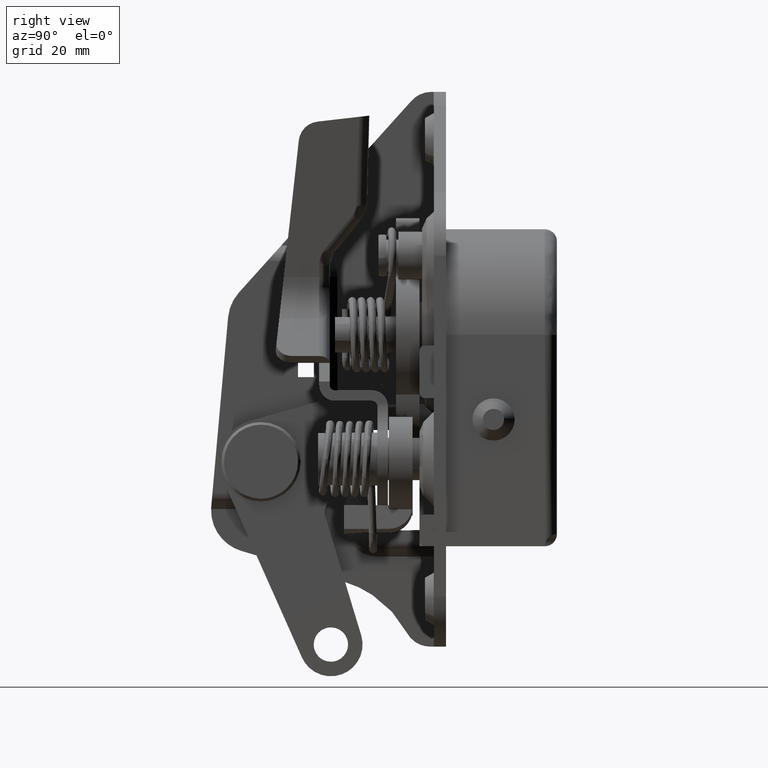
[diagram: clean part render]
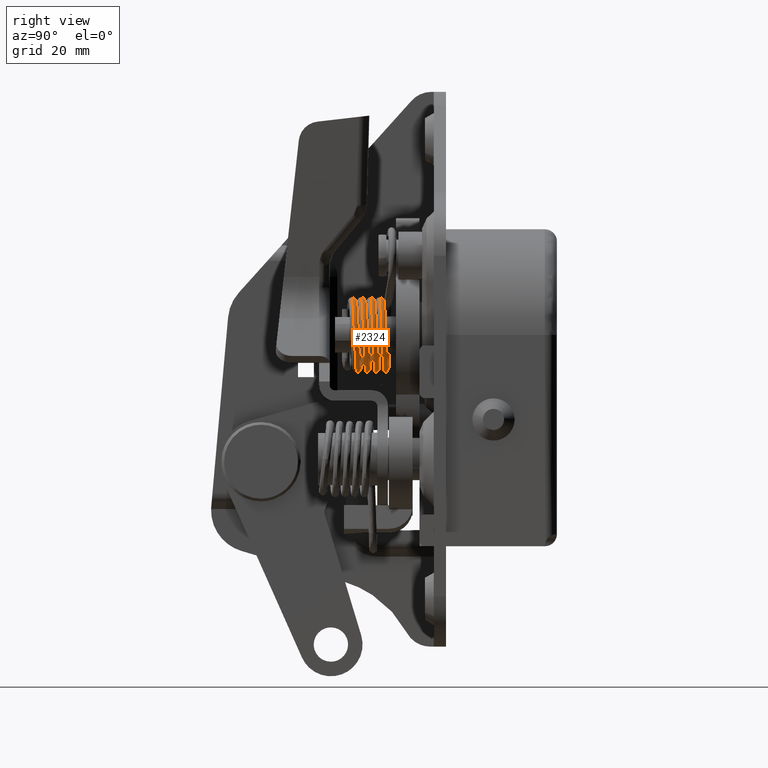
[diagram: same view with one face highlighted and labeled with its STEP entity id]
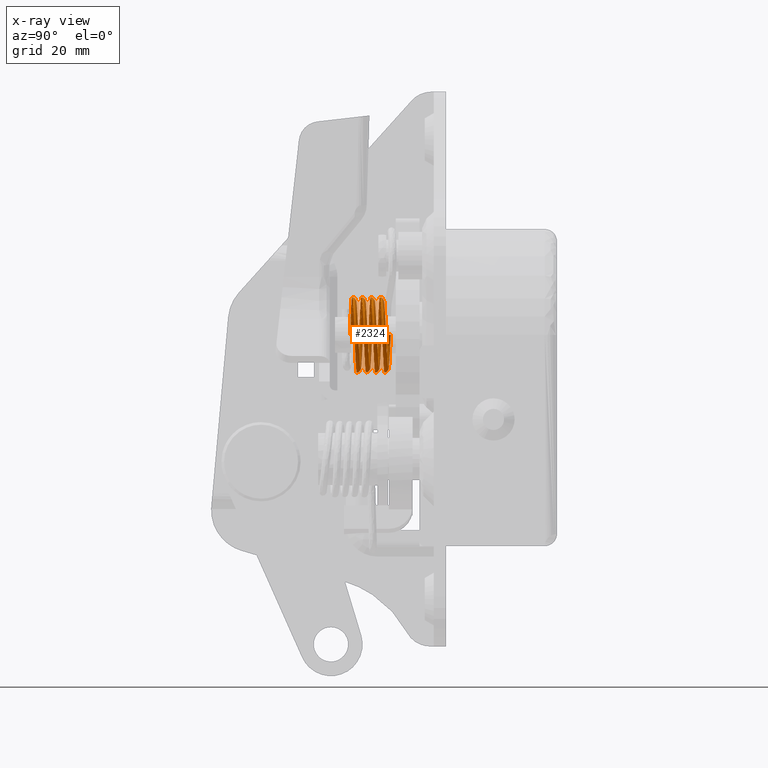
[diagram: x-ray of the same camera — body ghosted, the highlighted face saturated]
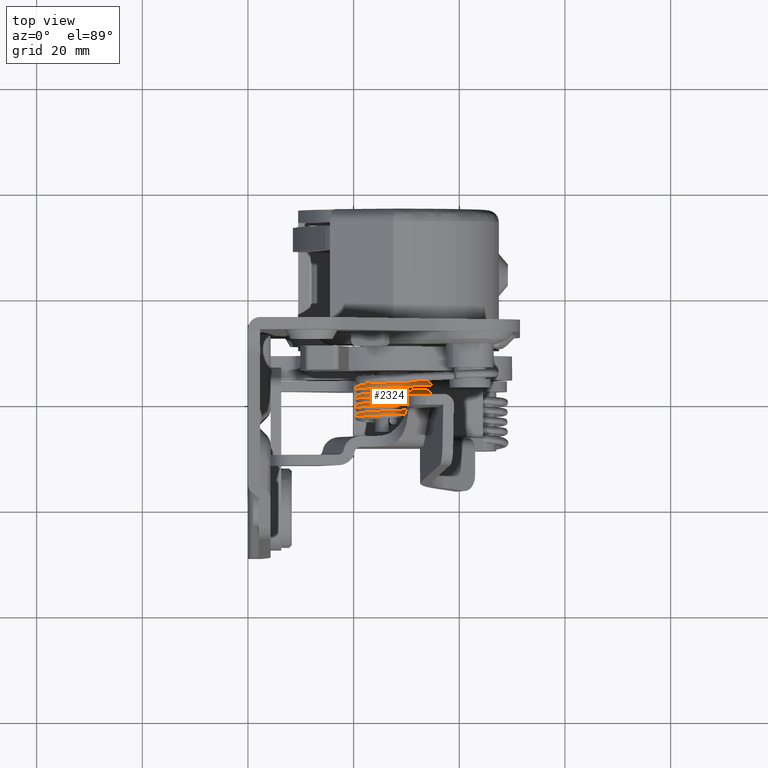
[diagram: same view with one face highlighted and labeled with its STEP entity id]
A machine part, right view. The second image highlights one B-rep face of the part: STEP entity #2324.
The next image is the same camera in x-ray: the body ghosted, the highlighted face saturated — about 0% of this face is hidden behind the body in this view.
A second angle (top view) of the same face is appended — the face is thin or edge-on in the first view.
In plain terms, the highlighted face is a freeform B-spline surface patch.
Its self-contained STEP definition (entity closure, byte-faithful):
#1089=CARTESIAN_POINT('',(20.340765150311949,16.812503550385820,24.100041675324679));
#1090=VERTEX_POINT('',#1089);
#1103=CARTESIAN_POINT('',(20.347090546051199,16.910682481819499,24.100000000000900));
#1104=VERTEX_POINT('',#1103);
#1105=CARTESIAN_POINT('',(20.347090546051199,16.910682481819499,24.100000000000900));
#1106=CARTESIAN_POINT('',(20.342838196119398,16.878148666121209,24.100043880886510));
#1107=CARTESIAN_POINT('',(20.340722957700009,16.845315873110611,24.100057816645130));
#1108=CARTESIAN_POINT('',(20.340765150311949,16.812503550385820,24.100041675324679));
#1109=B_SPLINE_CURVE_WITH_KNOTS('',3,(#1105,#1106,#1107,#1108),.UNSPECIFIED.,.F.,.U.,(4,4),(1.186188E-009,0.098457502183648),.UNSPECIFIED.);
#1110=EDGE_CURVE('',#1104,#1090,#1109,.T.);
#1112=CARTESIAN_POINT('',(20.341038092635149,16.842506223851149,24.033213713807001));
#1113=VERTEX_POINT('',#1112);
#1114=CARTESIAN_POINT('',(20.347090546051199,16.910682481819499,24.100000000000900));
#1115=CARTESIAN_POINT('',(20.343946676557469,16.887410031164269,24.078433802234890));
#1116=CARTESIAN_POINT('',(20.341926135428132,16.864649950670788,24.056137728973269));
#1117=CARTESIAN_POINT('',(20.341038092635149,16.842506223851149,24.033213713807001));
#1118=B_SPLINE_CURVE_WITH_KNOTS('',3,(#1114,#1115,#1116,#1117),.UNSPECIFIED.,.F.,.U.,(4,4),(2.536595E-010,0.095663904122388),.UNSPECIFIED.);
#1119=EDGE_CURVE('',#1104,#1113,#1118,.T.);
#1121=CARTESIAN_POINT('',(21.813089053093130,17.014604477294480,24.026384192999171));
#1122=VERTEX_POINT('',#1121);
#1123=CARTESIAN_POINT('',(20.341038092635149,16.842506223851149,24.033213713807001));
#1124=CARTESIAN_POINT('',(20.345802583286972,16.975238791239200,24.033191609145589));
#1125=CARTESIAN_POINT('',(20.418280836531238,17.204612831795298,24.032855349225301));
#1126=CARTESIAN_POINT('',(20.645814563558272,17.439890409005599,24.031799715714619));
#1127=CARTESIAN_POINT('',(20.870953715486859,17.542021151910699,24.030755191738209));
#1128=CARTESIAN_POINT('',(21.080423939309888,17.571178527326669,24.029783363119019));
#1129=CARTESIAN_POINT('',(21.280217341030529,17.550192004362760,24.028856429724140));
#1130=CARTESIAN_POINT('',(21.466423697138300,17.473072334417591,24.027992532877079));
#1131=CARTESIAN_POINT('',(21.677877630459090,17.309712222384160,24.027011500917620));
#1132=CARTESIAN_POINT('',(21.777867959926422,17.142700425344479,24.026547599834579));
#1133=CARTESIAN_POINT('',(21.813089053093130,17.014604477294480,24.026384192999171));
#1134=B_SPLINE_CURVE_WITH_KNOTS('',3,(#1123,#1124,#1125,#1126,#1127,#1128,#1129,#1130,#1131,#1132,#1133),.UNSPECIFIED.,.F.,.U.,(4,1,1,1,1,1,1,1,4),(0.000000493142820,0.398299288495498,0.697061440753659,0.962634832406464,1.128532849224858,1.327691147078739,1.560071444188675,1.726062092627393,2.124355999895241),.UNSPECIFIED.);
#1135=EDGE_CURVE('',#1113,#1122,#1134,.T.);
#1766=CARTESIAN_POINT('',(21.812250397722845,16.977222878724142,23.365481761800229));
#1767=CARTESIAN_POINT('',(21.811511675482048,16.979879755068421,23.365399350870163));
#1768=CARTESIAN_POINT('',(21.810768777913310,16.982551648329022,23.365316474145729));
#1769=CARTESIAN_POINT('',(21.466305867809737,18.221441324045518,23.326888622336480));
#1770=CARTESIAN_POINT('',(20.336626599531012,17.848943456188199,23.200863014817973));
#1771=CARTESIAN_POINT('',(20.336626599531048,16.781018987594909,23.200863014817983));
#1772=CARTESIAN_POINT('',(20.336626599531030,16.777641485968488,23.200863014817969));
#1773=CARTESIAN_POINT('',(20.336626599531055,16.774294405638894,23.200863014817983));
#1774=CARTESIAN_POINT('',(21.813759232044980,16.991673459872533,23.690699456498539));
#1775=CARTESIAN_POINT('',(21.813020705770882,16.994330336216805,23.690659284689559));
#1776=CARTESIAN_POINT('',(21.812278005276458,16.997002229477403,23.690618885825707));
#1777=CARTESIAN_POINT('',(21.467906473573453,18.235891905193906,23.671886949161557));
#1778=CARTESIAN_POINT('',(20.338526884248992,17.863394037336583,23.610454847522949));
#1779=CARTESIAN_POINT('',(20.338526884249024,16.795469568743293,23.610454847522963));
#1780=CARTESIAN_POINT('',(20.338526884249006,16.792092067116876,23.610454847522949));
#1781=CARTESIAN_POINT('',(20.338526884249013,16.788744986787272,23.610454847522956));
#1782=CARTESIAN_POINT('',(21.830543534129493,17.152422003123185,27.308427361367791));
#1783=CARTESIAN_POINT('',(21.829807187792657,17.155078879467442,27.308857058356008));
#1784=CARTESIAN_POINT('',(21.829066679556689,17.157750772728054,27.309289184032238));
#1785=CARTESIAN_POINT('',(21.485711642942995,18.396640448444582,27.509654987109524));
#1786=CARTESIAN_POINT('',(20.359665688082526,18.024142580587249,28.166762290012997));
#1787=CARTESIAN_POINT('',(20.359665688082526,16.956218111993930,28.166762290012986));
#1788=CARTESIAN_POINT('',(20.359665688082529,16.952840610367520,28.166762290012983));
#1789=CARTESIAN_POINT('',(20.359665688082522,16.949493530037923,28.166762290012986));
#1790=CARTESIAN_POINT('',(24.680498721357079,17.298255336456510,28.936267183572589));
#1791=CARTESIAN_POINT('',(24.680132525858305,17.300912212800782,28.936908303630606));
#1792=CARTESIAN_POINT('',(24.679764260587959,17.303584106061386,28.937553047359813));
#1793=CARTESIAN_POINT('',(24.509008920884948,18.542473781777897,29.236504491780185));
#1794=CARTESIAN_POINT('',(23.949010263402947,18.169975913920567,30.216927170326745));
#1795=CARTESIAN_POINT('',(23.949010263402947,17.102051445327263,30.216927170326763));
#1796=CARTESIAN_POINT('',(23.949010263402958,17.098673943700863,30.216927170326759));
#1797=CARTESIAN_POINT('',(23.949010263402936,17.095326863371241,30.216927170326741));
#1798=CARTESIAN_POINT('',(27.530453908584661,17.444088669789867,30.564107005777451));
#1799=CARTESIAN_POINT('',(27.530457863923967,17.446745546134139,30.564959548905247));
#1800=CARTESIAN_POINT('',(27.530461841619225,17.449417439394736,30.565816910687438));
#1801=CARTESIAN_POINT('',(27.532306198826962,18.688307115111250,30.963353996450856));
#1802=CARTESIAN_POINT('',(27.538354838723414,18.315809247253924,32.267092050640457));
#1803=CARTESIAN_POINT('',(27.538354838723414,17.247884778660620,32.267092050640443));
#1804=CARTESIAN_POINT('',(27.538354838723407,17.244507277034209,32.267092050640443));
#1805=CARTESIAN_POINT('',(27.538354838723411,17.241160196704612,32.267092050640443));
#1806=CARTESIAN_POINT('',(30.365182141519753,17.589922003123206,28.909893325093527));
#1807=CARTESIAN_POINT('',(30.365554270027484,17.592578879467482,28.910531019727216));
#1808=CARTESIAN_POINT('',(30.365928501840735,17.595250772728079,28.911172318671277));
#1809=CARTESIAN_POINT('',(30.539450377355312,18.834140448444558,29.208526502896081));
#1810=CARTESIAN_POINT('',(31.108521994681961,18.461642580587242,30.183710905633987));
#1811=CARTESIAN_POINT('',(31.108521994682004,17.393718111993969,30.183710905634005));
#1812=CARTESIAN_POINT('',(31.108521994682018,17.390340610367563,30.183710905634012));
#1813=CARTESIAN_POINT('',(31.108521994681986,17.386993530037941,30.183710905633983));
#1814=CARTESIAN_POINT('',(33.199910374454845,17.735755336456549,27.255679644409621));
#1815=CARTESIAN_POINT('',(33.200650676130991,17.738412212800821,27.256102490549193));
#1816=CARTESIAN_POINT('',(33.201395162062219,17.741084106061418,27.256527726655136));
#1817=CARTESIAN_POINT('',(33.546594555883672,18.979973781777911,27.453699009341324));
#1818=CARTESIAN_POINT('',(34.678689150640565,18.607475913920595,28.100329760627474));
#1819=CARTESIAN_POINT('',(34.678689150640579,17.539551445327298,28.100329760627481));
#1820=CARTESIAN_POINT('',(34.678689150640579,17.536173943700899,28.100329760627485));
#1821=CARTESIAN_POINT('',(34.678689150640579,17.532826863371291,28.100329760627485));
#1822=CARTESIAN_POINT('',(33.184683420162372,17.881588669789853,23.973626141520931));
#1823=CARTESIAN_POINT('',(33.185421744168856,17.884245546134132,23.973622716096603));
#1824=CARTESIAN_POINT('',(33.186164241252449,17.886917439394733,23.973619271311460));
#1825=CARTESIAN_POINT('',(33.530441456470051,19.125807115111215,23.972022011115893));
#1826=CARTESIAN_POINT('',(34.659511731278734,18.753309247253899,23.966783735307231));
#1827=CARTESIAN_POINT('',(34.659511731278755,17.685384778660620,23.966783735307260));
#1828=CARTESIAN_POINT('',(34.659511731278769,17.682007277034216,23.966783735307260));
#1829=CARTESIAN_POINT('',(34.659511731278734,17.678660196704595,23.966783735307246));
#1830=CARTESIAN_POINT('',(33.169456465869935,18.027422003123206,20.691572638632195));
#1831=CARTESIAN_POINT('',(33.170192812206771,18.030078879467474,20.691142941643971));
#1832=CARTESIAN_POINT('',(33.170933320442735,18.032750772728072,20.690710815967734));
#1833=CARTESIAN_POINT('',(33.514288357056429,19.271640448444579,20.490345012890469));
#1834=CARTESIAN_POINT('',(34.640334311916888,18.899142580587256,19.833237709987007));
#1835=CARTESIAN_POINT('',(34.640334311916909,17.831218111993952,19.833237709986992));
#1836=CARTESIAN_POINT('',(34.640334311916909,17.827840610367556,19.833237709987003));
#1837=CARTESIAN_POINT('',(34.640334311916909,17.824493530037948,19.833237709986999));
#1838=CARTESIAN_POINT('',(30.319501278642356,18.173255336456503,19.063732816427397));
#1839=CARTESIAN_POINT('',(30.319867474141130,18.175912212800785,19.063091696369387));
#1840=CARTESIAN_POINT('',(30.320235739411476,18.178584106061390,19.062446952640187));
#1841=CARTESIAN_POINT('',(30.490991079114401,19.417473781777879,18.763495508219780));
#1842=CARTESIAN_POINT('',(31.050989736596446,19.044975913920556,17.783072829673245));
#1843=CARTESIAN_POINT('',(31.050989736596510,17.977051445327266,17.783072829673252));
#1844=CARTESIAN_POINT('',(31.050989736596510,17.973673943700859,17.783072829673255));
#1845=CARTESIAN_POINT('',(31.050989736596485,17.970326863371245,17.783072829673234));
#1846=CARTESIAN_POINT('',(27.469546091414777,18.319088669789860,17.435892994222577));
#1847=CARTESIAN_POINT('',(27.469542136075461,18.321745546134132,17.435040451094778));
#1848=CARTESIAN_POINT('',(27.469538158380193,18.324417439394740,17.434183089312608));
#1849=CARTESIAN_POINT('',(27.467693801172476,19.563307115111240,17.036646003549137));
#1850=CARTESIAN_POINT('',(27.461645161276024,19.190809247253917,15.732907949359543));
#1851=CARTESIAN_POINT('',(27.461645161276017,18.122884778660616,15.732907949359536));
#1852=CARTESIAN_POINT('',(27.461645161276028,18.119507277034209,15.732907949359539));
#1853=CARTESIAN_POINT('',(27.461645161276021,18.116160196704602,15.732907949359529));
#1854=CARTESIAN_POINT('',(24.634817858479686,18.464922003123203,19.090106674906473));
#1855=CARTESIAN_POINT('',(24.634445729971965,18.467578879467474,19.089468980272787));
#1856=CARTESIAN_POINT('',(24.634071498158711,18.470250772728082,19.088827681328720));
#1857=CARTESIAN_POINT('',(24.460549622644095,19.709140448444568,18.791473497103901));
#1858=CARTESIAN_POINT('',(23.891478005317431,19.336642580587252,17.816289094366020));
#1859=CARTESIAN_POINT('',(23.891478005317452,18.268718111993962,17.816289094366049));
#1860=CARTESIAN_POINT('',(23.891478005317467,18.265340610367556,17.816289094366059));
#1861=CARTESIAN_POINT('',(23.891478005317445,18.261993530037941,17.816289094366041));
#1862=CARTESIAN_POINT('',(21.800089625544580,18.610755336456513,20.744320355590347));
#1863=CARTESIAN_POINT('',(21.799349323868434,18.613412212800785,20.743897509450772));
#1864=CARTESIAN_POINT('',(21.798604837937201,18.616084106061376,20.743472273344835));
#1865=CARTESIAN_POINT('',(21.453405444115766,19.854973781777915,20.546300990658668));
#1866=CARTESIAN_POINT('',(20.321310849358852,19.482475913920585,19.899670239372522));
#1867=CARTESIAN_POINT('',(20.321310849358852,18.414551445327263,19.899670239372497));
#1868=CARTESIAN_POINT('',(20.321310849358852,18.411173943700863,19.899670239372497));
#1869=CARTESIAN_POINT('',(20.321310849358849,18.407826863371259,19.899670239372501));
#1870=CARTESIAN_POINT('',(21.815316579837031,18.756588669789849,24.026373858479054));
#1871=CARTESIAN_POINT('',(21.814578255830529,18.759245546134128,24.026377283903390));
#1872=CARTESIAN_POINT('',(21.813835758746933,18.761917439394725,24.026380728688526));
#1873=CARTESIAN_POINT('',(21.469558543529359,20.000807115111222,24.027977988884093));
#1874=CARTESIAN_POINT('',(20.340488268720680,19.628309247253902,24.033216264692747));
#1875=CARTESIAN_POINT('',(20.340488268720705,18.560384778660620,24.033216264692758));
#1876=CARTESIAN_POINT('',(20.340488268720705,18.557007277034209,24.033216264692761));
#1877=CARTESIAN_POINT('',(20.340488268720691,18.553660196704595,24.033216264692744));
#1878=CARTESIAN_POINT('',(21.830543534129493,18.902422003123167,27.308427361367791));
#1879=CARTESIAN_POINT('',(21.829807187792657,18.905078879467453,27.308857058356008));
#1880=CARTESIAN_POINT('',(21.829066679556689,18.907750772728047,27.309289184032238));
#1881=CARTESIAN_POINT('',(21.485711642942995,20.146640448444572,27.509654987109524));
#1882=CARTESIAN_POINT('',(20.359665688082526,19.774142580587242,28.166762290012997));
#1883=CARTESIAN_POINT('',(20.359665688082526,18.706218111993916,28.166762290012986));
#1884=CARTESIAN_POINT('',(20.359665688082529,18.702840610367510,28.166762290012983));
#1885=CARTESIAN_POINT('',(20.359665688082522,18.699493530037905,28.166762290012986));
#1886=CARTESIAN_POINT('',(24.680498721357079,19.048255336456510,28.936267183572589));
#1887=CARTESIAN_POINT('',(24.680132525858305,19.050912212800789,28.936908303630606));
#1888=CARTESIAN_POINT('',(24.679764260587959,19.053584106061390,28.937553047359813));
#1889=CARTESIAN_POINT('',(24.509008920884948,20.292473781777886,29.236504491780185));
#1890=CARTESIAN_POINT('',(23.949010263402947,19.919975913920567,30.216927170326745));
#1891=CARTESIAN_POINT('',(23.949010263402947,18.852051445327266,30.216927170326763));
#1892=CARTESIAN_POINT('',(23.949010263402958,18.848673943700863,30.216927170326759));
#1893=CARTESIAN_POINT('',(23.949010263402936,18.845326863371245,30.216927170326741));
#1894=CARTESIAN_POINT('',(27.530453908584661,19.194088669789867,30.564107005777451));
#1895=CARTESIAN_POINT('',(27.530457863923967,19.196745546134149,30.564959548905247));
#1896=CARTESIAN_POINT('',(27.530461841619225,19.199417439394743,30.565816910687438));
#1897=CARTESIAN_POINT('',(27.532306198826962,20.438307115111236,30.963353996450856));
#1898=CARTESIAN_POINT('',(27.538354838723414,20.065809247253917,32.267092050640457));
#1899=CARTESIAN_POINT('',(27.538354838723414,18.997884778660627,32.267092050640443));
#1900=CARTESIAN_POINT('',(27.538354838723407,18.994507277034220,32.267092050640443));
#1901=CARTESIAN_POINT('',(27.538354838723411,18.991160196704616,32.267092050640443));
#1902=CARTESIAN_POINT('',(30.365182141519753,19.339922003123210,28.909893325093527));
#1903=CARTESIAN_POINT('',(30.365554270027484,19.342578879467478,28.910531019727216));
#1904=CARTESIAN_POINT('',(30.365928501840735,19.345250772728072,28.911172318671277));
#1905=CARTESIAN_POINT('',(30.539450377355312,20.584140448444547,29.208526502896081));
#1906=CARTESIAN_POINT('',(31.108521994681961,20.211642580587231,30.183710905633987));
#1907=CARTESIAN_POINT('',(31.108521994682004,19.143718111993962,30.183710905634005));
#1908=CARTESIAN_POINT('',(31.108521994682018,19.140340610367566,30.183710905634012));
#1909=CARTESIAN_POINT('',(31.108521994681986,19.136993530037948,30.183710905633983));
#1910=CARTESIAN_POINT('',(33.199910374454845,19.485755336456521,27.255679644409621));
#1911=CARTESIAN_POINT('',(33.200650676130991,19.488412212800803,27.256102490549193));
#1912=CARTESIAN_POINT('',(33.201395162062219,19.491084106061393,27.256527726655136));
#1913=CARTESIAN_POINT('',(33.546594555883672,20.729973781777900,27.453699009341324));
#1914=CARTESIAN_POINT('',(34.678689150640565,20.357475913920581,28.100329760627474));
#1915=CARTESIAN_POINT('',(34.678689150640579,19.289551445327280,28.100329760627481));
#1916=CARTESIAN_POINT('',(34.678689150640579,19.286173943700877,28.100329760627485));
#1917=CARTESIAN_POINT('',(34.678689150640579,19.282826863371273,28.100329760627485));
#1918=CARTESIAN_POINT('',(33.184683420162372,19.631588669789856,23.973626141520931));
#1919=CARTESIAN_POINT('',(33.185421744168856,19.634245546134132,23.973622716096603));
#1920=CARTESIAN_POINT('',(33.186164241252449,19.636917439394740,23.973619271311460));
#1921=CARTESIAN_POINT('',(33.530441456470051,20.875807115111240,23.972022011115893));
#1922=CARTESIAN_POINT('',(34.659511731278734,20.503309247253913,23.966783735307231));
#1923=CARTESIAN_POINT('',(34.659511731278755,19.435384778660620,23.966783735307260));
#1924=CARTESIAN_POINT('',(34.659511731278769,19.432007277034213,23.966783735307260));
#1925=CARTESIAN_POINT('',(34.659511731278734,19.428660196704598,23.966783735307246));
#1926=CARTESIAN_POINT('',(33.169456465869935,19.777422003123192,20.691572638632195));
#1927=CARTESIAN_POINT('',(33.170192812206771,19.780078879467457,20.691142941643971));
#1928=CARTESIAN_POINT('',(33.170933320442735,19.782750772728047,20.690710815967734));
#1929=CARTESIAN_POINT('',(33.514288357056429,21.021640448444572,20.490345012890469));
#1930=CARTESIAN_POINT('',(34.640334311916888,20.649142580587245,19.833237709987007));
#1931=CARTESIAN_POINT('',(34.640334311916909,19.581218111993934,19.833237709986992));
#1932=CARTESIAN_POINT('',(34.640334311916909,19.577840610367531,19.833237709987003));
#1933=CARTESIAN_POINT('',(34.640334311916909,19.574493530037927,19.833237709986999));
#1934=CARTESIAN_POINT('',(30.319501278642356,19.923255336456517,19.063732816427397));
#1935=CARTESIAN_POINT('',(30.319867474141130,19.925912212800792,19.063091696369387));
#1936=CARTESIAN_POINT('',(30.320235739411476,19.928584106061393,19.062446952640187));
#1937=CARTESIAN_POINT('',(30.490991079114401,21.167473781777893,18.763495508219780));
#1938=CARTESIAN_POINT('',(31.050989736596446,20.794975913920567,17.783072829673245));
#1939=CARTESIAN_POINT('',(31.050989736596510,19.727051445327270,17.783072829673252));
#1940=CARTESIAN_POINT('',(31.050989736596510,19.723673943700867,17.783072829673255));
#1941=CARTESIAN_POINT('',(31.050989736596485,19.720326863371248,17.783072829673234));
#1942=CARTESIAN_POINT('',(27.469546091414777,20.069088669789831,17.435892994222577));
#1943=CARTESIAN_POINT('',(27.469542136075461,20.071745546134110,17.435040451094778));
#1944=CARTESIAN_POINT('',(27.469538158380193,20.074417439394701,17.434183089312608));
#1945=CARTESIAN_POINT('',(27.467693801172476,21.313307115111236,17.036646003549137));
#1946=CARTESIAN_POINT('',(27.461645161276024,20.940809247253910,15.732907949359543));
#1947=CARTESIAN_POINT('',(27.461645161276017,19.872884778660588,15.732907949359536));
#1948=CARTESIAN_POINT('',(27.461645161276028,19.869507277034188,15.732907949359539));
#1949=CARTESIAN_POINT('',(27.461645161276021,19.866160196704584,15.732907949359529));
#1950=CARTESIAN_POINT('',(24.634817858479686,20.214922003123203,19.090106674906473));
#1951=CARTESIAN_POINT('',(24.634445729971965,20.217578879467485,19.089468980272787));
#1952=CARTESIAN_POINT('',(24.634071498158711,20.220250772728086,19.088827681328720));
#1953=CARTESIAN_POINT('',(24.460549622644095,21.459140448444554,18.791473497103901));
#1954=CARTESIAN_POINT('',(23.891478005317431,21.086642580587242,17.816289094366020));
#1955=CARTESIAN_POINT('',(23.891478005317452,20.018718111993966,17.816289094366049));
#1956=CARTESIAN_POINT('',(23.891478005317467,20.015340610367559,17.816289094366059));
#1957=CARTESIAN_POINT('',(23.891478005317445,20.011993530037948,17.816289094366041));
#1958=CARTESIAN_POINT('',(21.800089625544580,20.360755336456545,20.744320355590347));
#1959=CARTESIAN_POINT('',(21.799349323868434,20.363412212800824,20.743897509450772));
#1960=CARTESIAN_POINT('',(21.798604837937201,20.366084106061429,20.743472273344835));
#1961=CARTESIAN_POINT('',(21.453405444115766,21.604973781777900,20.546300990658668));
#1962=CARTESIAN_POINT('',(20.321310849358852,21.232475913920585,19.899670239372522));
#1963=CARTESIAN_POINT('',(20.321310849358852,20.164551445327305,19.899670239372497));
#1964=CARTESIAN_POINT('',(20.321310849358852,20.161173943700899,19.899670239372497));
#1965=CARTESIAN_POINT('',(20.321310849358849,20.157826863371298,19.899670239372501));
#1966=CARTESIAN_POINT('',(21.815316579837031,20.506588669789863,24.026373858479054));
#1967=CARTESIAN_POINT('',(21.814578255830529,20.509245546134135,24.026377283903390));
#1968=CARTESIAN_POINT('',(21.813835758746933,20.511917439394729,24.026380728688526));
#1969=CARTESIAN_POINT('',(21.469558543529359,21.750807115111215,24.027977988884093));
#1970=CARTESIAN_POINT('',(20.340488268720680,21.378309247253899,24.033216264692747));
#1971=CARTESIAN_POINT('',(20.340488268720705,20.310384778660612,24.033216264692758));
#1972=CARTESIAN_POINT('',(20.340488268720705,20.307007277034216,24.033216264692761));
#1973=CARTESIAN_POINT('',(20.340488268720691,20.303660196704591,24.033216264692744));
#1974=CARTESIAN_POINT('',(21.830543534129493,20.652422003123199,27.308427361367791));
#1975=CARTESIAN_POINT('',(21.829807187792657,20.655078879467478,27.308857058356008));
#1976=CARTESIAN_POINT('',(21.829066679556689,20.657750772728065,27.309289184032238));
#1977=CARTESIAN_POINT('',(21.485711642942995,21.896640448444565,27.509654987109524));
#1978=CARTESIAN_POINT('',(20.359665688082526,21.524142580587245,28.166762290012997));
#1979=CARTESIAN_POINT('',(20.359665688082526,20.456218111993959,28.166762290012986));
#1980=CARTESIAN_POINT('',(20.359665688082529,20.452840610367542,28.166762290012983));
#1981=CARTESIAN_POINT('',(20.359665688082522,20.449493530037941,28.166762290012986));
#1982=CARTESIAN_POINT('',(24.680498721357079,20.798255336456510,28.936267183572589));
#1983=CARTESIAN_POINT('',(24.680132525858305,20.800912212800789,28.936908303630606));
#1984=CARTESIAN_POINT('',(24.679764260587959,20.803584106061383,28.937553047359813));
#1985=CARTESIAN_POINT('',(24.509008920884948,22.042473781777900,29.236504491780185));
#1986=CARTESIAN_POINT('',(23.949010263402947,21.669975913920577,30.216927170326745));
#1987=CARTESIAN_POINT('',(23.949010263402947,20.602051445327270,30.216927170326763));
#1988=CARTESIAN_POINT('',(23.949010263402958,20.598673943700870,30.216927170326759));
#1989=CARTESIAN_POINT('',(23.949010263402936,20.595326863371252,30.216927170326741));
#1990=CARTESIAN_POINT('',(27.530453908584661,20.944088669789853,30.564107005777451));
#1991=CARTESIAN_POINT('',(27.530457863923967,20.946745546134132,30.564959548905247));
#1992=CARTESIAN_POINT('',(27.530461841619225,20.949417439394718,30.565816910687438));
#1993=CARTESIAN_POINT('',(27.532306198826962,22.188307115111233,30.963353996450856));
#1994=CARTESIAN_POINT('',(27.538354838723414,21.815809247253906,32.267092050640457));
#1995=CARTESIAN_POINT('',(27.538354838723414,20.747884778660612,32.267092050640443));
#1996=CARTESIAN_POINT('',(27.538354838723407,20.744507277034209,32.267092050640443));
#1997=CARTESIAN_POINT('',(27.538354838723411,20.741160196704598,32.267092050640443));
#1998=CARTESIAN_POINT('',(30.365182141519753,21.089922003123210,28.909893325093527));
#1999=CARTESIAN_POINT('',(30.365554270027484,21.092578879467489,28.910531019727216));
#2000=CARTESIAN_POINT('',(30.365928501840735,21.095250772728075,28.911172318671277));
#2001=CARTESIAN_POINT('',(30.539450377355312,22.334140448444568,29.208526502896081));
#2002=CARTESIAN_POINT('',(31.108521994681961,21.961642580587249,30.183710905633987));
#2003=CARTESIAN_POINT('',(31.108521994682004,20.893718111993966,30.183710905634005));
#2004=CARTESIAN_POINT('',(31.108521994682018,20.890340610367563,30.183710905634012));
#2005=CARTESIAN_POINT('',(31.108521994681986,20.886993530037941,30.183710905633983));
#2006=CARTESIAN_POINT('',(33.199910374454845,21.235755336456510,27.255679644409621));
#2007=CARTESIAN_POINT('',(33.200650676130991,21.238412212800785,27.256102490549193));
#2008=CARTESIAN_POINT('',(33.201395162062219,21.241084106061390,27.256527726655136));
#2009=CARTESIAN_POINT('',(33.546594555883672,22.479973781777893,27.453699009341324));
#2010=CARTESIAN_POINT('',(34.678689150640565,22.107475913920570,28.100329760627474));
#2011=CARTESIAN_POINT('',(34.678689150640579,21.039551445327266,28.100329760627481));
#2012=CARTESIAN_POINT('',(34.678689150640579,21.036173943700852,28.100329760627485));
#2013=CARTESIAN_POINT('',(34.678689150640579,21.032826863371255,28.100329760627485));
#2014=CARTESIAN_POINT('',(33.184683420162372,21.381588669789856,23.973626141520931));
#2015=CARTESIAN_POINT('',(33.185421744168856,21.384245546134139,23.973622716096603));
#2016=CARTESIAN_POINT('',(33.186164241252449,21.386917439394729,23.973619271311460));
#2017=CARTESIAN_POINT('',(33.530441456470051,22.625807115111229,23.972022011115893));
#2018=CARTESIAN_POINT('',(34.659511731278734,22.253309247253906,23.966783735307231));
#2019=CARTESIAN_POINT('',(34.659511731278755,21.185384778660612,23.966783735307260));
#2020=CARTESIAN_POINT('',(34.659511731278769,21.182007277034220,23.966783735307260));
#2021=CARTESIAN_POINT('',(34.659511731278734,21.178660196704591,23.966783735307246));
#2022=CARTESIAN_POINT('',(33.169456465869935,21.527422003123164,20.691572638632195));
#2023=CARTESIAN_POINT('',(33.170192812206771,21.530078879467439,20.691142941643971));
#2024=CARTESIAN_POINT('',(33.170933320442735,21.532750772728040,20.690710815967734));
#2025=CARTESIAN_POINT('',(33.514288357056429,22.771640448444565,20.490345012890469));
#2026=CARTESIAN_POINT('',(34.640334311916888,22.399142580587235,19.833237709987007));
#2027=CARTESIAN_POINT('',(34.640334311916909,21.331218111993920,19.833237709986992));
#2028=CARTESIAN_POINT('',(34.640334311916909,21.327840610367506,19.833237709987003));
#2029=CARTESIAN_POINT('',(34.640334311916909,21.324493530037913,19.833237709986999));
#2030=CARTESIAN_POINT('',(30.319501278642356,21.673255336456503,19.063732816427397));
#2031=CARTESIAN_POINT('',(30.319867474141130,21.675912212800778,19.063091696369387));
#2032=CARTESIAN_POINT('',(30.320235739411476,21.678584106061372,19.062446952640187));
#2033=CARTESIAN_POINT('',(30.490991079114401,22.917473781777883,18.763495508219780));
#2034=CARTESIAN_POINT('',(31.050989736596446,22.544975913920563,17.783072829673245));
#2035=CARTESIAN_POINT('',(31.050989736596510,21.477051445327270,17.783072829673252));
#2036=CARTESIAN_POINT('',(31.050989736596510,21.473673943700863,17.783072829673255));
#2037=CARTESIAN_POINT('',(31.050989736596485,21.470326863371241,17.783072829673234));
#2038=CARTESIAN_POINT('',(27.469546091414777,21.819088669789863,17.435892994222577));
#2039=CARTESIAN_POINT('',(27.469542136075461,21.821745546134135,17.435040451094778));
#2040=CARTESIAN_POINT('',(27.469538158380193,21.824417439394736,17.434183089312608));
#2041=CARTESIAN_POINT('',(27.467693801172476,23.063307115111225,17.036646003549137));
#2042=CARTESIAN_POINT('',(27.461645161276024,22.690809247253906,15.732907949359543));
#2043=CARTESIAN_POINT('',(27.461645161276017,21.622884778660620,15.732907949359536));
#2044=CARTESIAN_POINT('',(27.461645161276028,21.619507277034220,15.732907949359539));
#2045=CARTESIAN_POINT('',(27.461645161276021,21.616160196704623,15.732907949359529));
#2046=CARTESIAN_POINT('',(24.634817858479686,21.964922003123192,19.090106674906473));
#2047=CARTESIAN_POINT('',(24.634445729971965,21.967578879467482,19.089468980272787));
#2048=CARTESIAN_POINT('',(24.634071498158711,21.970250772728065,19.088827681328720));
#2049=CARTESIAN_POINT('',(24.460549622644095,23.209140448444543,18.791473497103901));
#2050=CARTESIAN_POINT('',(23.891478005317431,22.836642580587231,17.816289094366020));
#2051=CARTESIAN_POINT('',(23.891478005317452,21.768718111993969,17.816289094366049));
#2052=CARTESIAN_POINT('',(23.891478005317467,21.765340610367563,17.816289094366059));
#2053=CARTESIAN_POINT('',(23.891478005317445,21.761993530037945,17.816289094366041));
#2054=CARTESIAN_POINT('',(21.800089625544580,22.110755336456517,20.744320355590347));
#2055=CARTESIAN_POINT('',(21.799349323868434,22.113412212800792,20.743897509450772));
#2056=CARTESIAN_POINT('',(21.798604837937201,22.116084106061390,20.743472273344835));
#2057=CARTESIAN_POINT('',(21.453405444115766,23.354973781777893,20.546300990658668));
#2058=CARTESIAN_POINT('',(20.321310849358852,22.982475913920567,19.899670239372522));
#2059=CARTESIAN_POINT('',(20.321310849358852,21.914551445327284,19.899670239372497));
#2060=CARTESIAN_POINT('',(20.321310849358852,21.911173943700874,19.899670239372497));
#2061=CARTESIAN_POINT('',(20.321310849358849,21.907826863371277,19.899670239372501));
#2062=CARTESIAN_POINT('',(21.815316579837031,22.256588669789853,24.026373858479054));
#2063=CARTESIAN_POINT('',(21.814578255830529,22.259245546134132,24.026377283903390));
#2064=CARTESIAN_POINT('',(21.813835758746933,22.261917439394729,24.026380728688526));
#2065=CARTESIAN_POINT('',(21.469558543529359,23.500807115111229,24.027977988884093));
#2066=CARTESIAN_POINT('',(20.340488268720680,23.128309247253910,24.033216264692747));
#2067=CARTESIAN_POINT('',(20.340488268720705,22.060384778660616,24.033216264692758));
#2068=CARTESIAN_POINT('',(20.340488268720705,22.057007277034216,24.033216264692761));
#2069=CARTESIAN_POINT('',(20.340488268720691,22.053660196704595,24.033216264692744));
#2070=CARTESIAN_POINT('',(21.830543534129493,22.402422003123174,27.308427361367791));
#2071=CARTESIAN_POINT('',(21.829807187792657,22.405078879467446,27.308857058356008));
#2072=CARTESIAN_POINT('',(21.829066679556689,22.407750772728058,27.309289184032238));
#2073=CARTESIAN_POINT('',(21.485711642942995,23.646640448444554,27.509654987109524));
#2074=CARTESIAN_POINT('',(20.359665688082526,23.274142580587235,28.166762290012997));
#2075=CARTESIAN_POINT('',(20.359665688082526,22.206218111993937,28.166762290012986));
#2076=CARTESIAN_POINT('',(20.359665688082529,22.202840610367531,28.166762290012983));
#2077=CARTESIAN_POINT('',(20.359665688082522,22.199493530037934,28.166762290012986));
#2078=CARTESIAN_POINT('',(24.680498721357079,22.548255336456513,28.936267183572589));
#2079=CARTESIAN_POINT('',(24.680132525858305,22.550912212800782,28.936908303630606));
#2080=CARTESIAN_POINT('',(24.679764260587959,22.553584106061386,28.937553047359813));
#2081=CARTESIAN_POINT('',(24.509008920884948,23.792473781777897,29.236504491780185));
#2082=CARTESIAN_POINT('',(23.949010263402947,23.419975913920570,30.216927170326745));
#2083=CARTESIAN_POINT('',(23.949010263402947,22.352051445327273,30.216927170326763));
#2084=CARTESIAN_POINT('',(23.949010263402958,22.348673943700863,30.216927170326759));
#2085=CARTESIAN_POINT('',(23.949010263402936,22.345326863371245,30.216927170326741));
#2086=CARTESIAN_POINT('',(27.530453908584661,22.694088669789828,30.564107005777451));
#2087=CARTESIAN_POINT('',(27.530457863923967,22.696745546134100,30.564959548905247));
#2088=CARTESIAN_POINT('',(27.530461841619225,22.699417439394711,30.565816910687438));
#2089=CARTESIAN_POINT('',(27.532306198826962,23.938307115111222,30.963353996450856));
#2090=CARTESIAN_POINT('',(27.538354838723414,23.565809247253895,32.267092050640457));
#2091=CARTESIAN_POINT('',(27.538354838723414,22.497884778660580,32.267092050640443));
#2092=CARTESIAN_POINT('',(27.538354838723407,22.494507277034185,32.267092050640443));
#2093=CARTESIAN_POINT('',(27.538354838723411,22.491160196704577,32.267092050640443));
#2094=CARTESIAN_POINT('',(30.365182141519753,22.839922003123210,28.909893325093527));
#2095=CARTESIAN_POINT('',(30.365554270027484,22.842578879467485,28.910531019727216));
#2096=CARTESIAN_POINT('',(30.365928501840735,22.845250772728079,28.911172318671277));
#2097=CARTESIAN_POINT('',(30.539450377355312,24.084140448444550,29.208526502896081));
#2098=CARTESIAN_POINT('',(31.108521994681961,23.711642580587238,30.183710905633987));
#2099=CARTESIAN_POINT('',(31.108521994682004,22.643718111993966,30.183710905634005));
#2100=CARTESIAN_POINT('',(31.108521994682018,22.640340610367566,30.183710905634012));
#2101=CARTESIAN_POINT('',(31.108521994681986,22.636993530037945,30.183710905633983));
#2102=CARTESIAN_POINT('',(33.199910374454845,22.985755336456538,27.255679644409621));
#2103=CARTESIAN_POINT('',(33.200650676130991,22.988412212800810,27.256102490549193));
#2104=CARTESIAN_POINT('',(33.201395162062219,22.991084106061408,27.256527726655136));
#2105=CARTESIAN_POINT('',(33.546594555883672,24.229973781777886,27.453699009341324));
#2106=CARTESIAN_POINT('',(34.678689150640565,23.857475913920570,28.100329760627474));
#2107=CARTESIAN_POINT('',(34.678689150640579,22.789551445327294,28.100329760627481));
#2108=CARTESIAN_POINT('',(34.678689150640579,22.786173943700888,28.100329760627485));
#2109=CARTESIAN_POINT('',(34.678689150640579,22.782826863371291,28.100329760627485));
#2110=CARTESIAN_POINT('',(33.184683420162372,23.131588669789846,23.973626141520931));
#2111=CARTESIAN_POINT('',(33.185421744168856,23.134245546134125,23.973622716096603));
#2112=CARTESIAN_POINT('',(33.186164241252449,23.136917439394722,23.973619271311460));
#2113=CARTESIAN_POINT('',(33.530441456470051,24.375807115111218,23.972022011115893));
#2114=CARTESIAN_POINT('',(34.659511731278734,24.003309247253899,23.966783735307231));
#2115=CARTESIAN_POINT('',(34.659511731278755,22.935384778660612,23.966783735307260));
#2116=CARTESIAN_POINT('',(34.659511731278769,22.932007277034209,23.966783735307260));
#2117=CARTESIAN_POINT('',(34.659511731278734,22.928660196704595,23.966783735307246));
#2118=CARTESIAN_POINT('',(33.169456465869935,23.277422003123192,20.691572638632195));
#2119=CARTESIAN_POINT('',(33.170192812206771,23.280078879467464,20.691142941643971));
#2120=CARTESIAN_POINT('',(33.170933320442735,23.282750772728061,20.690710815967734));
#2121=CARTESIAN_POINT('',(33.514288357056429,24.521640448444547,20.490345012890469));
#2122=CARTESIAN_POINT('',(34.640334311916888,24.149142580587231,19.833237709987007));
#2123=CARTESIAN_POINT('',(34.640334311916909,23.081218111993948,19.833237709986992));
#2124=CARTESIAN_POINT('',(34.640334311916909,23.077840610367552,19.833237709987003));
#2125=CARTESIAN_POINT('',(34.640334311916909,23.074493530037948,19.833237709986999));
#2126=CARTESIAN_POINT('',(30.319501278642356,23.423255336456521,19.063732816427397));
#2127=CARTESIAN_POINT('',(30.319867474141130,23.425912212800789,19.063091696369387));
#2128=CARTESIAN_POINT('',(30.320235739411476,23.428584106061386,19.062446952640187));
#2129=CARTESIAN_POINT('',(30.490991079114401,24.667473781777900,18.763495508219780));
#2130=CARTESIAN_POINT('',(31.050989736596446,24.294975913920588,17.783072829673245));
#2131=CARTESIAN_POINT('',(31.050989736596510,23.227051445327270,17.783072829673252));
#2132=CARTESIAN_POINT('',(31.050989736596510,23.223673943700867,17.783072829673255));
#2133=CARTESIAN_POINT('',(31.050989736596485,23.220326863371248,17.783072829673234));
#2134=CARTESIAN_POINT('',(27.469546091414777,23.569088669789849,17.435892994222577));
#2135=CARTESIAN_POINT('',(27.469542136075461,23.571745546134117,17.435040451094778));
#2136=CARTESIAN_POINT('',(27.469538158380193,23.574417439394729,17.434183089312608));
#2137=CARTESIAN_POINT('',(27.467693801172476,24.813307115111250,17.036646003549137));
#2138=CARTESIAN_POINT('',(27.461645161276024,24.440809247253924,15.732907949359543));
#2139=CARTESIAN_POINT('',(27.461645161276017,23.372884778660605,15.732907949359536));
#2140=CARTESIAN_POINT('',(27.461645161276028,23.369507277034199,15.732907949359539));
#2141=CARTESIAN_POINT('',(27.461645161276021,23.366160196704591,15.732907949359529));
#2142=CARTESIAN_POINT('',(24.634817858479686,23.714922003123203,19.090106674906473));
#2143=CARTESIAN_POINT('',(24.634445729971965,23.717578879467489,19.089468980272787));
#2144=CARTESIAN_POINT('',(24.634071498158711,23.720250772728079,19.088827681328720));
#2145=CARTESIAN_POINT('',(24.460549622644095,24.959140448444565,18.791473497103901));
#2146=CARTESIAN_POINT('',(23.891478005317431,24.586642580587242,17.816289094366020));
#2147=CARTESIAN_POINT('',(23.891478005317452,23.518718111993966,17.816289094366049));
#2148=CARTESIAN_POINT('',(23.891478005317467,23.515340610367570,17.816289094366059));
#2149=CARTESIAN_POINT('',(23.891478005317445,23.511993530037948,17.816289094366041));
#2150=CARTESIAN_POINT('',(21.815255399941652,23.859975129236926,20.735470325032093));
#2151=CARTESIAN_POINT('',(21.814517067989133,23.862632005581190,20.735046329454715));
#2152=CARTESIAN_POINT('',(21.813774562914610,23.865303898841795,20.734619937414241));
#2153=CARTESIAN_POINT('',(21.469493642505000,25.104193574558323,20.536912676969958));
#2154=CARTESIAN_POINT('',(20.340411216377472,24.731695706700993,19.888524166157751));
#2155=CARTESIAN_POINT('',(20.340411216377479,23.663771238107675,19.888524166157723));
#2156=CARTESIAN_POINT('',(20.340411216377479,23.660393736481268,19.888524166157715));
#2157=CARTESIAN_POINT('',(20.340411216377476,23.657046656151660,19.888524166157719));
#2158=CARTESIAN_POINT('',(21.815255399942206,24.020388254183871,24.336082602085380));
#2159=CARTESIAN_POINT('',(21.814517067989698,24.023045130528146,24.336126252335514));
#2160=CARTESIAN_POINT('',(21.813774562915164,24.025717023788744,24.336170149301001));
#2161=CARTESIAN_POINT('',(21.469493642505540,25.264606699505240,24.356524067677253));
#2162=CARTESIAN_POINT('',(20.340411216378026,24.892108831647906,24.423275520281980));
#2163=CARTESIAN_POINT('',(20.340411216378044,23.824184363054620,24.423275520281980));
#2164=CARTESIAN_POINT('',(20.340411216378055,23.820806861428235,24.423275520281994));
#2165=CARTESIAN_POINT('',(20.340411216378055,23.817459781098627,24.423275520281987));
#2166=CARTESIAN_POINT('',(21.815255399942263,24.034898560209911,24.661779056402505));
#2167=CARTESIAN_POINT('',(21.814517067989751,24.037555436554193,24.661865007954813));
#2168=CARTESIAN_POINT('',(21.813774562915228,24.040227329814780,24.661951445313420));
#2169=CARTESIAN_POINT('',(21.469493642505594,25.279117005531276,24.702030273594200));
#2170=CARTESIAN_POINT('',(20.340411216378079,24.906619137673950,24.833470321499718));
#2171=CARTESIAN_POINT('',(20.340411216378090,23.838694669080652,24.833470321499714));
#2172=CARTESIAN_POINT('',(20.340411216378087,23.835317167454253,24.833470321499714));
#2173=CARTESIAN_POINT('',(20.340411216378097,23.831970087124652,24.833470321499718));
#2181=(BOUNDED_SURFACE()B_SPLINE_SURFACE(3,2,((#1766,#1774,#1782,#1790,#1798,#1806,#1814,#1822,#1830,#1838,#1846,#1854,#1862,#1870,#1878,#1886,#1894,#1902,#1910,#1918,#1926,#1934,#1942,#1950,#1958,#1966,#1974,#1982,#1990,#1998,#2006,#2014,#2022,#2030,#2038,#2046,#2054,#2062,#2070,#2078,#2086,#2094,#2102,#2110,#2118,#2126,#2134,#2142,#2150,#2158,#2166),(#1767,#1775,#1783,#1791,#1799,#1807,#1815,#1823,#1831,#1839,#1847,#1855,#1863,#1871,#1879,#1887,#1895,#1903,#1911,#1919,#1927,#1935,#1943,#1951,#1959,#1967,#1975,#1983,#1991,#1999,#2007,#2015,#2023,#2031,#2039,#2047,#2055,#2063,#2071,#2079,#2087,#2095,#2103,#2111,#2119,#2127,#2135,#2143,#2151,#2159,#2167),(#1768,#1776,#1784,#1792,#1800,#1808,#1816,#1824,#1832,#1840,#1848,#1856,#1864,#1872,#1880,#1888,#1896,#1904,#1912,#1920,#1928,#1936,#1944,#1952,#1960,#1968,#1976,#1984,#1992,#2000,#2008,#2016,#2024,#2032,#2040,#2048,#2056,#2064,#2072,#2080,#2088,#2096,#2104,#2112,#2120,#2128,#2136,#2144,#2152,#2160,#2168),(#1769,#1777,#1785,#1793,#1801,#1809,#1817,#1825,#1833,#1841,#1849,#1857,#1865,#1873,#1881,#1889,#1897,#1905,#1913,#1921,#1929,#1937,#1945,#1953,#1961,#1969,#1977,#1985,#1993,#2001,#2009,#2017,#2025,#2033,#2041,#2049,#2057,#2065,#2073,#2081,#2089,#2097,#2105,#2113,#2121,#2129,#2137,#2145,#2153,#2161,#2169),(#1770,#1778,#1786,#1794,#1802,#1810,#1818,#1826,#1834,#1842,#1850,#1858,#1866,#1874,#1882,#1890,#1898,#1906,#1914,#1922,#1930,#1938,#1946,#1954,#1962,#1970,#1978,#1986,#1994,#2002,#2010,#2018,#2026,#2034,#2042,#2050,#2058,#2066,#2074,#2082,#2090,#2098,#2106,#2114,#2122,#2130,#2138,#2146,#2154,#2162,#2170),(#1771,#1779,#1787,#1795,#1803,#1811,#1819,#1827,#1835,#1843,#1851,#1859,#1867,#1875,#1883,#1891,#1899,#1907,#1915,#1923,#1931,#1939,#1947,#1955,#1963,#1971,#1979,#1987,#1995,#2003,#2011,#2019,#2027,#2035,#2043,#2051,#2059,#2067,#2075,#2083,#2091,#2099,#2107,#2115,#2123,#2131,#2139,#2147,#2155,#2163,#2171),(#1772,#1780,#1788,#1796,#1804,#1812,#1820,#1828,#1836,#1844,#1852,#1860,#1868,#1876,#1884,#1892,#1900,#1908,#1916,#1924,#1932,#1940,#1948,#1956,#1964,#1972,#1980,#1988,#1996,#2004,#2012,#2020,#2028,#2036,#2044,#2052,#2060,#2068,#2076,#2084,#2092,#2100,#2108,#2116,#2124,#2132,#2140,#2148,#2156,#2164,#2172),(#1773,#1781,#1789,#1797,#1805,#1813,#1821,#1829,#1837,#1845,#1853,#1861,#1869,#1877,#1885,#1893,#1901,#1909,#1917,#1925,#1933,#1941,#1949,#1957,#1965,#1973,#1981,#1989,#1997,#2005,#2013,#2021,#2029,#2037,#2045,#2053,#2061,#2069,#2077,#2085,#2093,#2101,#2109,#2117,#2125,#2133,#2141,#2149,#2157,#2165,#2173)),.UNSPECIFIED.,.F.,.F.,.U.)B_SPLINE_SURFACE_WITH_KNOTS((4,2,2,4),(3,1,2,2,2,2,2,2,2,2,2,2,2,2,2,2,2,2,2,2,2,2,2,2,2,1,3),(0.0,0.012927431924665,2.591277401783105,2.611341062423725),(0.0,0.921571271936385,8.601560248650412,16.281549225364440,23.961538202078479,31.641527178792479,39.321516155506572,47.001505132220572,54.681494108934572,62.361483085648672,70.041472062362672,77.721461039076672,85.401450015790658,93.081438992504758,100.761427969218900,108.441416945932800,116.121405922646800,123.801394899361000,131.481383876074800,139.161372852788900,146.841361829503090,154.521350806216990,162.201339782931000,169.881328759645210,177.561317736359090,185.205698040169210,186.127119402959890),.UNSPECIFIED.)GEOMETRIC_REPRESENTATION_ITEM()RATIONAL_B_SPLINE_SURFACE(((0.821084389843413,0.808295450520166,0.688928847572462,0.795506511196919,0.688928847572462,0.795506511196919,0.688928847572462,0.795506511196919,0.688928847572462,0.795506511196919,0.688928847572462,0.795506511196919,0.688928847572462,0.795506511196919,0.688928847572462,0.795506511196919,0.688928847572462,0.795506511196919,0.688928847572462,0.795506511196919,0.688928847572462,0.795506511196919,0.688928847572462,0.795506511196919,0.688928847572462,0.795506511196919,0.688928847572462,0.795506511196919,0.688928847572462,0.795506511196919,0.688928847572462,0.795506511196919,0.688928847572462,0.795506511196919,0.688928847572462,0.795506511196919,0.688928847572462,0.795506511196919,0.688928847572462,0.795506511196919,0.688928847572462,0.795506511196919,0.688928847572462,0.795506511196919,0.688928847572462,0.795506511196919,0.688928847572462,0.795506511196919,0.689423000516480,0.807191072738497,0.819859357835869),(0.818777008078213,0.806024007771413,0.686992844550030,0.793271007464613,0.686992844550030,0.793271007464613,0.686992844550030,0.793271007464613,0.686992844550030,0.793271007464613,0.686992844550030,0.793271007464613,0.686992844550030,0.793271007464613,0.686992844550030,0.793271007464613,0.686992844550030,0.793271007464613,0.686992844550030,0.793271007464613,0.686992844550030,0.793271007464613,0.686992844550030,0.793271007464613,0.686992844550030,0.793271007464613,0.686992844550030,0.793271007464613,0.686992844550030,0.793271007464613,0.686992844550030,0.793271007464613,0.686992844550030,0.793271007464613,0.686992844550030,0.793271007464613,0.686992844550030,0.793271007464613,0.686992844550030,0.793271007464613,0.686992844550030,0.793271007464613,0.686992844550030,0.793271007464613,0.686992844550030,0.793271007464613,0.686992844550030,0.793271007464613,0.687485608843251,0.804922733472391,0.817555418611473),(0.816469626313013,0.803752565022660,0.685056841527598,0.791035503732306,0.685056841527598,0.791035503732306,0.685056841527598,0.791035503732306,0.685056841527598,0.791035503732306,0.685056841527598,0.791035503732306,0.685056841527598,0.791035503732306,0.685056841527598,0.791035503732306,0.685056841527598,0.791035503732306,0.685056841527598,0.791035503732306,0.685056841527598,0.791035503732306,0.685056841527598,0.791035503732306,0.685056841527598,0.791035503732306,0.685056841527598,0.791035503732306,0.685056841527598,0.791035503732306,0.685056841527598,0.791035503732306,0.685056841527598,0.791035503732306,0.685056841527598,0.791035503732306,0.685056841527598,0.791035503732306,0.685056841527598,0.791035503732306,0.685056841527598,0.791035503732306,0.685056841527598,0.791035503732306,0.685056841527598,0.791035503732306,0.685056841527598,0.791035503732306,0.685548217170021,0.802654394206284,0.815251479387078),(0.353959650604628,0.348446491968981,0.296988978471144,0.342933333333334,0.296988978471144,0.342933333333334,0.296988978471144,0.342933333333334,0.296988978471144,0.342933333333334,0.296988978471144,0.342933333333334,0.296988978471144,0.342933333333334,0.296988978471144,0.342933333333334,0.296988978471144,0.342933333333334,0.296988978471144,0.342933333333334,0.296988978471144,0.342933333333334,0.296988978471144,0.342933333333334,0.296988978471144,0.342933333333334,0.296988978471144,0.342933333333334,0.296988978471144,0.342933333333334,0.296988978471144,0.342933333333334,0.296988978471144,0.342933333333334,0.296988978471144,0.342933333333334,0.296988978471144,0.342933333333334,0.296988978471144,0.342933333333334,0.296988978471144,0.342933333333334,0.296988978471144,0.342933333333334,0.296988978471144,0.342933333333334,0.296988978471144,0.342933333333334,0.297202001889410,0.347970407928691,0.353431553972012),(0.426623218069341,0.419978275701337,0.357957166897568,0.413333333333334,0.357957166897568,0.413333333333334,0.357957166897568,0.413333333333334,0.357957166897568,0.413333333333334,0.357957166897568,0.413333333333334,0.357957166897568,0.413333333333334,0.357957166897568,0.413333333333334,0.357957166897568,0.413333333333334,0.357957166897568,0.413333333333334,0.357957166897568,0.413333333333334,0.357957166897568,0.413333333333334,0.357957166897568,0.413333333333334,0.357957166897568,0.413333333333334,0.357957166897568,0.413333333333334,0.357957166897568,0.413333333333334,0.357957166897568,0.413333333333334,0.357957166897568,0.413333333333334,0.357957166897568,0.413333333333334,0.357957166897568,0.413333333333334,0.357957166897568,0.413333333333334,0.357957166897568,0.413333333333334,0.357957166897568,0.413333333333334,0.357957166897568,0.413333333333334,0.358213921406365,0.419404457456821,0.425986709686328),(1.036864930625291,1.020715064852422,0.869978982160665,1.004565199079553,0.869978982160665,1.004565199079553,0.869978982160665,1.004565199079553,0.869978982160665,1.004565199079553,0.869978982160665,1.004565199079553,0.869978982160665,1.004565199079553,0.869978982160665,1.004565199079553,0.869978982160665,1.004565199079553,0.869978982160665,1.004565199079553,0.869978982160665,1.004565199079553,0.869978982160665,1.004565199079553,0.869978982160665,1.004565199079553,0.869978982160665,1.004565199079553,0.869978982160665,1.004565199079553,0.869978982160665,1.004565199079553,0.869978982160665,1.004565199079553,0.869978982160665,1.004565199079553,0.869978982160665,1.004565199079553,0.869978982160665,1.004565199079553,0.869978982160665,1.004565199079553,0.869978982160665,1.004565199079553,0.869978982160665,1.004565199079553,0.869978982160665,1.004565199079553,0.870602998235450,1.019320457177330,1.035317960857960),(1.041576914308629,1.025353656233868,0.873932560536892,1.009130398159106,0.873932560536892,1.009130398159106,0.873932560536892,1.009130398159106,0.873932560536892,1.009130398159106,0.873932560536892,1.009130398159106,0.873932560536892,1.009130398159106,0.873932560536892,1.009130398159106,0.873932560536892,1.009130398159106,0.873932560536892,1.009130398159106,0.873932560536892,1.009130398159106,0.873932560536892,1.009130398159106,0.873932560536892,1.009130398159106,0.873932560536892,1.009130398159106,0.873932560536892,1.009130398159106,0.873932560536892,1.009130398159106,0.873932560536892,1.009130398159106,0.873932560536892,1.009130398159106,0.873932560536892,1.009130398159106,0.873932560536892,1.009130398159106,0.873932560536892,1.009130398159106,0.873932560536892,1.009130398159106,0.873932560536892,1.009130398159106,0.873932560536892,1.009130398159106,0.874559412423242,1.023952710830093,1.040022914410287),(1.046288897991966,1.029992247615313,0.877886138913118,1.013695597238660,0.877886138913118,1.013695597238660,0.877886138913118,1.013695597238660,0.877886138913118,1.013695597238660,0.877886138913118,1.013695597238660,0.877886138913118,1.013695597238660,0.877886138913118,1.013695597238660,0.877886138913118,1.013695597238660,0.877886138913118,1.013695597238660,0.877886138913118,1.013695597238660,0.877886138913118,1.013695597238660,0.877886138913118,1.013695597238660,0.877886138913118,1.013695597238660,0.877886138913118,1.013695597238660,0.877886138913118,1.013695597238660,0.877886138913118,1.013695597238660,0.877886138913118,1.013695597238660,0.877886138913118,1.013695597238660,0.877886138913118,1.013695597238660,0.877886138913118,1.013695597238660,0.877886138913118,1.013695597238660,0.877886138913118,1.013695597238660,0.877886138913118,1.013695597238660,0.878515826611034,1.028584964482857,1.044727867962614)))REPRESENTATION_ITEM('')SURFACE());
#2182=CARTESIAN_POINT('',(21.813012531980849,24.013426770022729,24.000000000000892));
#2183=VERTEX_POINT('',#2182);
#2184=CARTESIAN_POINT('',(20.340411221077652,23.812619678022340,24.000000000000881));
#2185=VERTEX_POINT('',#2184);
#2186=CARTESIAN_POINT('',(21.813012531980849,24.013426770022729,24.000000000000892));
#2187=CARTESIAN_POINT('',(21.795002549250491,24.078226113215671,24.000000000000892));
#2188=CARTESIAN_POINT('',(21.732509066125569,24.223785792325572,24.000000000000920));
#2189=CARTESIAN_POINT('',(21.582329984456109,24.395146600902830,24.000000000000849));
#2190=CARTESIAN_POINT('',(21.368409058218500,24.522531486449399,24.000000000000920));
#2191=CARTESIAN_POINT('',(21.146243374954949,24.572959575328071,24.000000000000899));
#2192=CARTESIAN_POINT('',(20.898333228744612,24.550428874882339,24.000000000000860));
#2193=CARTESIAN_POINT('',(20.688900870413789,24.460737941044052,24.000000000000881));
#2194=CARTESIAN_POINT('',(20.492943686514032,24.289416198798580,24.000000000000899));
#2195=CARTESIAN_POINT('',(20.368782563068748,24.070503878223459,24.000000000000860));
#2196=CARTESIAN_POINT('',(20.340400244981531,23.891086718923841,24.000000000000892));
#2197=CARTESIAN_POINT('',(20.340411221077652,23.812619678022340,24.000000000000881));
#2198=B_SPLINE_CURVE_WITH_KNOTS('',3,(#2186,#2187,#2188,#2189,#2190,#2191,#2192,#2193,#2194,#2195,#2196,#2197),.UNSPECIFIED.,.F.,.U.,(4,1,1,1,1,1,1,1,1,4),(0.000000207333942,0.201793687236430,0.470935614646262,0.672791189949750,0.941929852353203,1.143679263876265,1.412810512211080,1.614650242072399,1.917430493260499,2.152860091416018),.UNSPECIFIED.);
#2199=EDGE_CURVE('',#2183,#2185,#2198,.T.);
#2200=ORIENTED_EDGE('',*,*,#2199,.F.);
#2201=CARTESIAN_POINT('',(21.813089053093130,17.014604477294487,24.026384192999164));
#2202=CARTESIAN_POINT('',(21.828321681954005,17.160437729285771,27.309723759045653));
#2203=CARTESIAN_POINT('',(24.679393310197771,17.306270977489771,28.938201445569323));
#2204=CARTESIAN_POINT('',(27.530464938441529,17.452104225693805,30.566679132093046));
#2205=CARTESIAN_POINT('',(30.366303618666151,17.597937466353549,28.911817252570209));
#2206=CARTESIAN_POINT('',(33.202142298890784,17.743770707013308,27.256955373047401));
#2207=CARTESIAN_POINT('',(33.186909031713441,17.889603943916050,23.973615807000925));
#2208=CARTESIAN_POINT('',(33.171675764536161,18.035437180818825,20.690276240954432));
#2209=CARTESIAN_POINT('',(30.320603497975952,18.181270421508863,19.061798554430784));
#2210=CARTESIAN_POINT('',(27.469531231415761,18.327103662198933,17.433320867907096));
#2211=CARTESIAN_POINT('',(24.633691912874685,18.472936910433255,19.088182747429883));
#2212=CARTESIAN_POINT('',(21.797852594333598,18.618770158667555,20.743044626952667));
#2213=CARTESIAN_POINT('',(21.813085223194474,18.764603410658864,24.026384192999153));
#2214=CARTESIAN_POINT('',(21.828317852055353,18.910436662650152,27.309723759045653));
#2215=CARTESIAN_POINT('',(24.679389480299104,19.056269910854173,28.938201445569309));
#2216=CARTESIAN_POINT('',(27.530461108542863,19.202103159058215,30.566679132093036));
#2217=CARTESIAN_POINT('',(30.366299788767495,19.347936399717941,28.911817252570195));
#2218=CARTESIAN_POINT('',(33.202138468992132,19.493769640377689,27.256955373047401));
#2219=CARTESIAN_POINT('',(33.186905201814781,19.639602877280439,23.973615807000925));
#2220=CARTESIAN_POINT('',(33.171671934637494,19.785436114183206,20.690276240954418));
#2221=CARTESIAN_POINT('',(30.320599668077296,19.931269354873251,19.061798554430759));
#2222=CARTESIAN_POINT('',(27.469527401517094,20.077102595563300,17.433320867907081));
#2223=CARTESIAN_POINT('',(24.633688082976029,20.222935843797657,19.088182747429883));
#2224=CARTESIAN_POINT('',(21.797848764434931,20.368769092031993,20.743044626952656));
#2225=CARTESIAN_POINT('',(21.813081393295807,20.514602344023267,24.026384192999142));
#2226=CARTESIAN_POINT('',(21.828314022156682,20.660435596014576,27.309723759045635));
#2227=CARTESIAN_POINT('',(24.679385650400445,20.806268844218575,28.938201445569298));
#2228=CARTESIAN_POINT('',(27.530457278644207,20.952102092422582,30.566679132093022));
#2229=CARTESIAN_POINT('',(30.366295958868825,21.097935333082344,28.911817252570184));
#2230=CARTESIAN_POINT('',(33.202134639093480,21.243768573742070,27.256955373047386));
#2231=CARTESIAN_POINT('',(33.186901371916129,21.389601810644841,23.973615807000915));
#2232=CARTESIAN_POINT('',(33.171668104738835,21.535435047547587,20.690276240954404));
#2233=CARTESIAN_POINT('',(30.320595838178637,21.681268288237639,19.061798554430759));
#2234=CARTESIAN_POINT('',(27.469523571618438,21.827101528927724,17.433320867907067));
#2235=CARTESIAN_POINT('',(24.633684253077359,21.972934777162042,19.088182747429869));
#2236=CARTESIAN_POINT('',(21.797844934536275,22.118768025396360,20.743044626952639));
#2237=CARTESIAN_POINT('',(21.813077563397151,22.264601277387666,24.026384192999128));
#2238=CARTESIAN_POINT('',(21.828310192258030,22.410434529378954,27.309723759045625));
#2239=CARTESIAN_POINT('',(24.679381820501789,22.556267777582960,28.938201445569284));
#2240=CARTESIAN_POINT('',(27.530453448745536,22.702101025786959,30.566679132093004));
#2241=CARTESIAN_POINT('',(30.366292128970173,22.847934266446742,28.911817252570170));
#2242=CARTESIAN_POINT('',(33.202130809194813,22.993767507106476,27.256955373047372));
#2243=CARTESIAN_POINT('',(33.186897542017462,23.139600744009229,23.973615807000900));
#2244=CARTESIAN_POINT('',(33.171664274840182,23.285433980912011,20.690276240954404));
#2245=CARTESIAN_POINT('',(30.320592008279974,23.431267221602045,19.061798554430744));
#2246=CARTESIAN_POINT('',(27.469519741719783,23.577100462292115,17.433320867907067));
#2247=CARTESIAN_POINT('',(24.633680423178703,23.722933710526448,19.088182747429858));
#2248=CARTESIAN_POINT('',(21.813012823334198,23.867986751996437,20.734191128535553));
#2249=CARTESIAN_POINT('',(21.813012531980846,24.013426770022718,24.000000000000888));
#2257=(BOUNDED_CURVE()B_SPLINE_CURVE(2,(#2201,#2202,#2203,#2204,#2205,#2206,#2207,#2208,#2209,#2210,#2211,#2212,#2213,#2214,#2215,#2216,#2217,#2218,#2219,#2220,#2221,#2222,#2223,#2224,#2225,#2226,#2227,#2228,#2229,#2230,#2231,#2232,#2233,#2234,#2235,#2236,#2237,#2238,#2239,#2240,#2241,#2242,#2243,#2244,#2245,#2246,#2247,#2248,#2249),.UNSPECIFIED.,.F.,.U.)B_SPLINE_CURVE_WITH_KNOTS((3,2,2,2,2,2,2,2,2,2,2,2,2,2,2,2,2,2,2,2,2,2,2,2,3),(0.0,0.041666666666667,0.083333333333333,0.125000000000000,0.166666666666666,0.208333333333334,0.250000000000000,0.291666666666667,0.333333333333333,0.375000000000000,0.416666666666667,0.458333333333333,0.500000000000000,0.541666666666667,0.583333333333333,0.625000000000000,0.666666666666667,0.708333333333333,0.750000000000000,0.791666666666667,0.833333333333333,0.875000000000000,0.916666666666667,0.958333333333333,0.999806810308084),.UNSPECIFIED.)CURVE()GEOMETRIC_REPRESENTATION_ITEM()RATIONAL_B_SPLINE_CURVE((0.788800000000000,0.683120838505165,0.788800000000000,0.683120838505165,0.788800000000000,0.683120838505165,0.788800000000000,0.683120838505165,0.788800000000000,0.683120838505165,0.788800000000000,0.683120838505165,0.788800000000000,0.683120838505165,0.788800000000000,0.683120838505165,0.788800000000000,0.683120838505165,0.788800000000000,0.683120838505165,0.788800000000000,0.683120838505165,0.788800000000000,0.683120838505165,0.788800000000000,0.683120838505165,0.788800000000000,0.683120838505165,0.788800000000000,0.683120838505165,0.788800000000000,0.683120838505165,0.788800000000000,0.683120838505165,0.788800000000000,0.683120838505165,0.788800000000000,0.683120838505165,0.788800000000000,0.683120838505165,0.788800000000000,0.683120838505165,0.788800000000000,0.683120838505165,0.788800000000000,0.683120838505165,0.788800000000000,0.683610825496792,0.787824569717673))REPRESENTATION_ITEM(''));
#2258=EDGE_CURVE('',#1122,#2183,#2257,.T.);
#2259=ORIENTED_EDGE('',*,*,#2258,.F.);
#2260=ORIENTED_EDGE('',*,*,#1135,.F.);
#2261=ORIENTED_EDGE('',*,*,#1119,.F.);
#2262=ORIENTED_EDGE('',*,*,#1110,.T.);
#2263=CARTESIAN_POINT('',(20.340765150311956,16.812503550385816,24.100041675324675));
#2264=CARTESIAN_POINT('',(20.397832204379004,16.957587246712638,28.188888417572972));
#2265=CARTESIAN_POINT('',(23.948676977670271,17.101916061681951,30.217057523555781));
#2266=CARTESIAN_POINT('',(27.538027251438788,17.247809984001353,32.267220175149326));
#2267=CARTESIAN_POINT('',(31.108203000565240,17.393734684549539,30.183835669268792));
#2268=CARTESIAN_POINT('',(34.678378749691689,17.539659385097735,28.100451163388176));
#2269=CARTESIAN_POINT('',(34.659211376718687,17.685599537078570,23.966901208824559));
#2270=CARTESIAN_POINT('',(34.640044003745707,17.831539689059461,19.833351254260918));
#2271=CARTESIAN_POINT('',(31.050708033315338,17.977464514244200,17.783183008488422));
#2272=CARTESIAN_POINT('',(27.461372062884905,18.123389339428982,15.733014762715950));
#2273=CARTESIAN_POINT('',(23.891210617096569,18.269283386384981,17.816393674417650));
#2274=CARTESIAN_POINT('',(20.321049171308207,18.415177433340936,19.899772586119283));
#2275=CARTESIAN_POINT('',(20.340230847619299,18.561056028864229,24.033316946504009));
#2276=CARTESIAN_POINT('',(20.359412523930356,18.706934624387483,28.166861306888730));
#2277=CARTESIAN_POINT('',(23.948762797698830,18.852828546706888,30.217023958482340));
#2278=CARTESIAN_POINT('',(27.538113071467354,18.998722469026305,32.267186610075889));
#2279=CARTESIAN_POINT('',(31.108288820593799,19.144647169574480,30.183802104195351));
#2280=CARTESIAN_POINT('',(34.678464569720248,19.290571870122641,28.100417598314731));
#2281=CARTESIAN_POINT('',(34.659297196747261,19.436512022103511,23.966867643751119));
#2282=CARTESIAN_POINT('',(34.640129823774274,19.582452174084370,19.833317689187488));
#2283=CARTESIAN_POINT('',(31.050793853343901,19.728376999269141,17.783149443414981));
#2284=CARTESIAN_POINT('',(27.461457882913468,19.874301824453902,15.732981197642511));
#2285=CARTESIAN_POINT('',(23.891296437125131,20.020195871409921,17.816360109344210));
#2286=CARTESIAN_POINT('',(20.321134991336763,20.166089918365909,19.899739021045839));
#2287=CARTESIAN_POINT('',(20.340316667647858,20.311968513889159,24.033283381430572));
#2288=CARTESIAN_POINT('',(20.359498343958922,20.457847109412459,28.166827741815286));
#2289=CARTESIAN_POINT('',(23.948848617727400,20.603741031731818,30.216990393408899));
#2290=CARTESIAN_POINT('',(27.538198891495917,20.749634954051213,32.267153045002445));
#2291=CARTESIAN_POINT('',(31.108374640622358,20.895559654599410,30.183768539121910));
#2292=CARTESIAN_POINT('',(34.678550389748807,21.041484355147560,28.100384033241291));
#2293=CARTESIAN_POINT('',(34.659383016775820,21.187424507128441,23.966834078677689));
#2294=CARTESIAN_POINT('',(34.640215643802840,21.333364659109286,19.833284124114048));
#2295=CARTESIAN_POINT('',(31.050879673372460,21.479289484294071,17.783115878341540));
#2296=CARTESIAN_POINT('',(27.461543702942034,21.625214309478874,15.732947632569079));
#2297=CARTESIAN_POINT('',(23.891382257153690,21.771108356434851,17.816326544270769));
#2298=CARTESIAN_POINT('',(20.321220811365325,21.917002403390814,19.899705455972402));
#2299=CARTESIAN_POINT('',(20.340402487676421,22.062880998914100,24.033249816357131));
#2300=CARTESIAN_POINT('',(20.359584163987485,22.208759594437378,28.166794176741845));
#2301=CARTESIAN_POINT('',(23.948934437755959,22.354653516756748,30.216956828335459));
#2302=CARTESIAN_POINT('',(27.538284711524483,22.500547439076129,32.267119479929015));
#2303=CARTESIAN_POINT('',(31.108460460650932,22.646472139624350,30.183734974048470));
#2304=CARTESIAN_POINT('',(34.678636209777366,22.792396840172522,28.100350468167861));
#2305=CARTESIAN_POINT('',(34.659468836804393,22.938336992153381,23.966800513604252));
#2306=CARTESIAN_POINT('',(34.640301463831399,23.084277144134262,19.833250559040607));
#2307=CARTESIAN_POINT('',(31.050965493401030,23.230201969319008,17.783082313268100));
#2308=CARTESIAN_POINT('',(27.461629522970597,23.376126794503794,15.732914067495638));
#2309=CARTESIAN_POINT('',(23.891468077182260,23.522020841459788,17.816292979197339));
#2310=CARTESIAN_POINT('',(20.340406967863153,23.667134356378721,19.888525829632353));
#2311=CARTESIAN_POINT('',(20.340411221077645,23.812619678022347,24.000000000000878));
#2319=(BOUNDED_CURVE()B_SPLINE_CURVE(2,(#2263,#2264,#2265,#2266,#2267,#2268,#2269,#2270,#2271,#2272,#2273,#2274,#2275,#2276,#2277,#2278,#2279,#2280,#2281,#2282,#2283,#2284,#2285,#2286,#2287,#2288,#2289,#2290,#2291,#2292,#2293,#2294,#2295,#2296,#2297,#2298,#2299,#2300,#2301,#2302,#2303,#2304,#2305,#2306,#2307,#2308,#2309,#2310,#2311),.UNSPECIFIED.,.F.,.U.)B_SPLINE_CURVE_WITH_KNOTS((3,2,2,2,2,2,2,2,2,2,2,2,2,2,2,2,2,2,2,2,2,2,2,2,3),(0.000387659967622,0.041666666666667,0.083333333333333,0.125000000000000,0.166666666666666,0.208333333333334,0.250000000000000,0.291666666666667,0.333333333333333,0.375000000000000,0.416666666666667,0.458333333333333,0.500000000000000,0.541666666666667,0.583333333333333,0.625000000000000,0.666666666666667,0.708333333333333,0.750000000000000,0.791666666666667,0.833333333333333,0.875000000000000,0.916666666666667,0.958333333333333,0.999806810308084),.UNSPECIFIED.)CURVE()GEOMETRIC_REPRESENTATION_ITEM()RATIONAL_B_SPLINE_CURVE((0.997530237857442,0.867271881887584,1.0,0.866025403784439,1.0,0.866025403784439,1.0,0.866025403784439,1.0,0.866025403784439,1.0,0.866025403784439,1.0,0.866025403784439,1.0,0.866025403784439,1.0,0.866025403784439,1.0,0.866025403784439,1.0,0.866025403784439,1.0,0.866025403784439,1.0,0.866025403784439,1.0,0.866025403784439,1.0,0.866025403784439,1.0,0.866025403784439,1.0,0.866025403784439,1.0,0.866025403784439,1.0,0.866025403784439,1.0,0.866025403784439,1.0,0.866025403784439,1.0,0.866025403784439,1.0,0.866025403784439,1.0,0.866646584047657,0.998763399743500))REPRESENTATION_ITEM(''));
#2320=EDGE_CURVE('',#1090,#2185,#2319,.T.);
#2321=ORIENTED_EDGE('',*,*,#2320,.T.);
#2322=EDGE_LOOP('',(#2200,#2259,#2260,#2261,#2262,#2321));
#2323=FACE_OUTER_BOUND('',#2322,.T.);
#2324=ADVANCED_FACE('',(#2323),#2181,.T.);